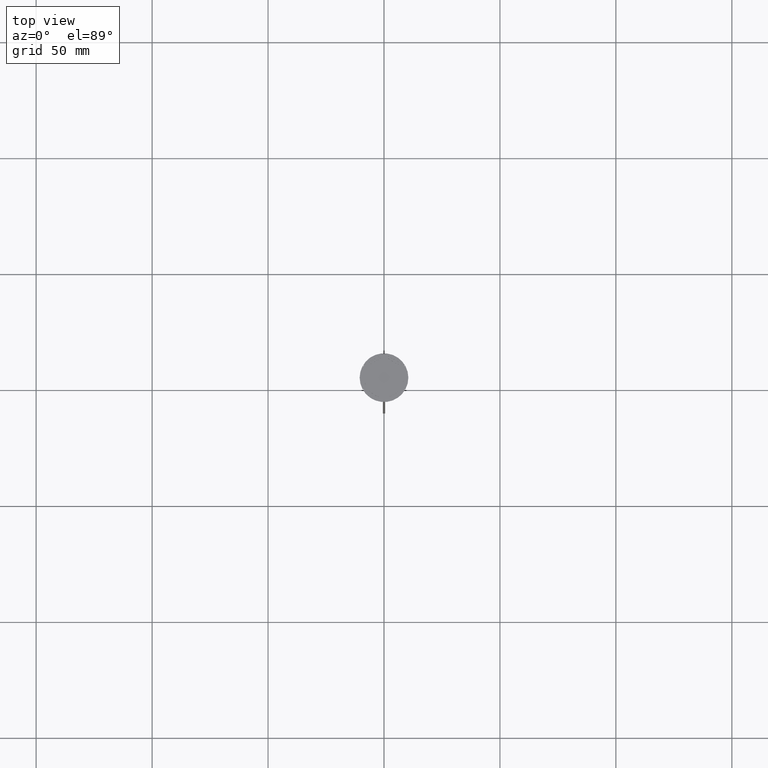
[diagram: clean part render]
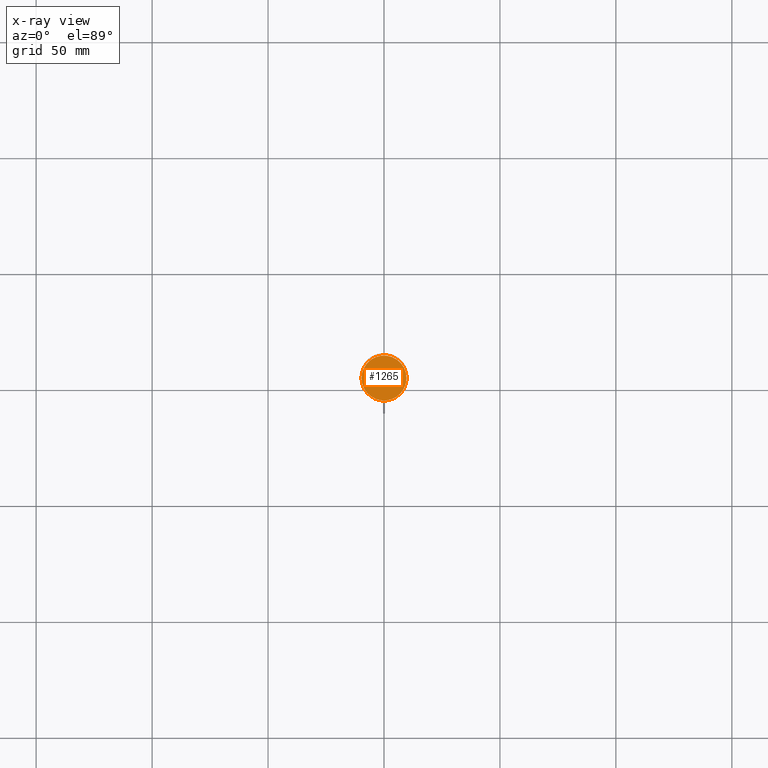
[diagram: x-ray — body ghosted, one internal face saturated and labeled with its STEP entity id]
A machine part, top view, then the same camera in x-ray: the body is ghosted and one INTERNAL B-rep face — a face not visible from any outside direction — is saturated and labeled: STEP entity #1265.
In plain terms, the highlighted planar face has unit normal (0, 0, -1).
Its self-contained STEP definition (entity closure, byte-faithful):
#81 = AXIS2_PLACEMENT_3D ( 'NONE', #1853, #1866, #2459 ) ;
#91 = AXIS2_PLACEMENT_3D ( 'NONE', #2060, #610, #2268 ) ;
#94 = EDGE_CURVE ( 'NONE', #137, #904, #680, .T. ) ;
#131 = AXIS2_PLACEMENT_3D ( 'NONE', #1069, #1255, #2281 ) ;
#137 = VERTEX_POINT ( 'NONE', #1874 ) ;
#219 = CIRCLE ( 'NONE', #91, 9.700000000000002842 ) ;
#237 = CARTESIAN_POINT ( 'NONE',  ( 9.700000000000002842, 1.206277097160143024E-15, -12.00000000000000000 ) ) ;
#610 = DIRECTION ( 'NONE',  ( -0.000000000000000000, -0.000000000000000000, 1.000000000000000000 ) ) ;
#680 = CIRCLE ( 'NONE', #131, 9.700000000000002842 ) ;
#750 = EDGE_CURVE ( 'NONE', #904, #137, #219, .T. ) ;
#904 = VERTEX_POINT ( 'NONE', #237 ) ;
#1069 = CARTESIAN_POINT ( 'NONE',  ( 0.000000000000000000, 0.000000000000000000, -12.00000000000000000 ) ) ;
#1139 = EDGE_LOOP ( 'NONE', ( #2379, #2115 ) ) ;
#1255 = DIRECTION ( 'NONE',  ( -0.000000000000000000, -0.000000000000000000, 1.000000000000000000 ) ) ;
#1265 = ADVANCED_FACE ( 'NONE', ( #1672 ), #2494, .F. ) ;
#1672 = FACE_OUTER_BOUND ( 'NONE', #1139, .T. ) ;
#1853 = CARTESIAN_POINT ( 'NONE',  ( 0.000000000000000000, 0.000000000000000000, -12.00000000000000000 ) ) ;
#1866 = DIRECTION ( 'NONE',  ( 0.000000000000000000, 0.000000000000000000, -1.000000000000000000 ) ) ;
#1874 = CARTESIAN_POINT ( 'NONE',  ( -9.700000000000002842, 0.000000000000000000, -12.00000000000000000 ) ) ;
#2060 = CARTESIAN_POINT ( 'NONE',  ( 0.000000000000000000, 0.000000000000000000, -12.00000000000000000 ) ) ;
#2115 = ORIENTED_EDGE ( 'NONE', *, *, #750, .T. ) ;
#2268 = DIRECTION ( 'NONE',  ( -1.000000000000000000, 0.000000000000000000, 0.000000000000000000 ) ) ;
#2281 = DIRECTION ( 'NONE',  ( -1.000000000000000000, 0.000000000000000000, 0.000000000000000000 ) ) ;
#2379 = ORIENTED_EDGE ( 'NONE', *, *, #94, .T. ) ;
#2459 = DIRECTION ( 'NONE',  ( -1.000000000000000000, 0.000000000000000000, -0.000000000000000000 ) ) ;
#2494 = PLANE ( 'NONE',  #81 ) ;